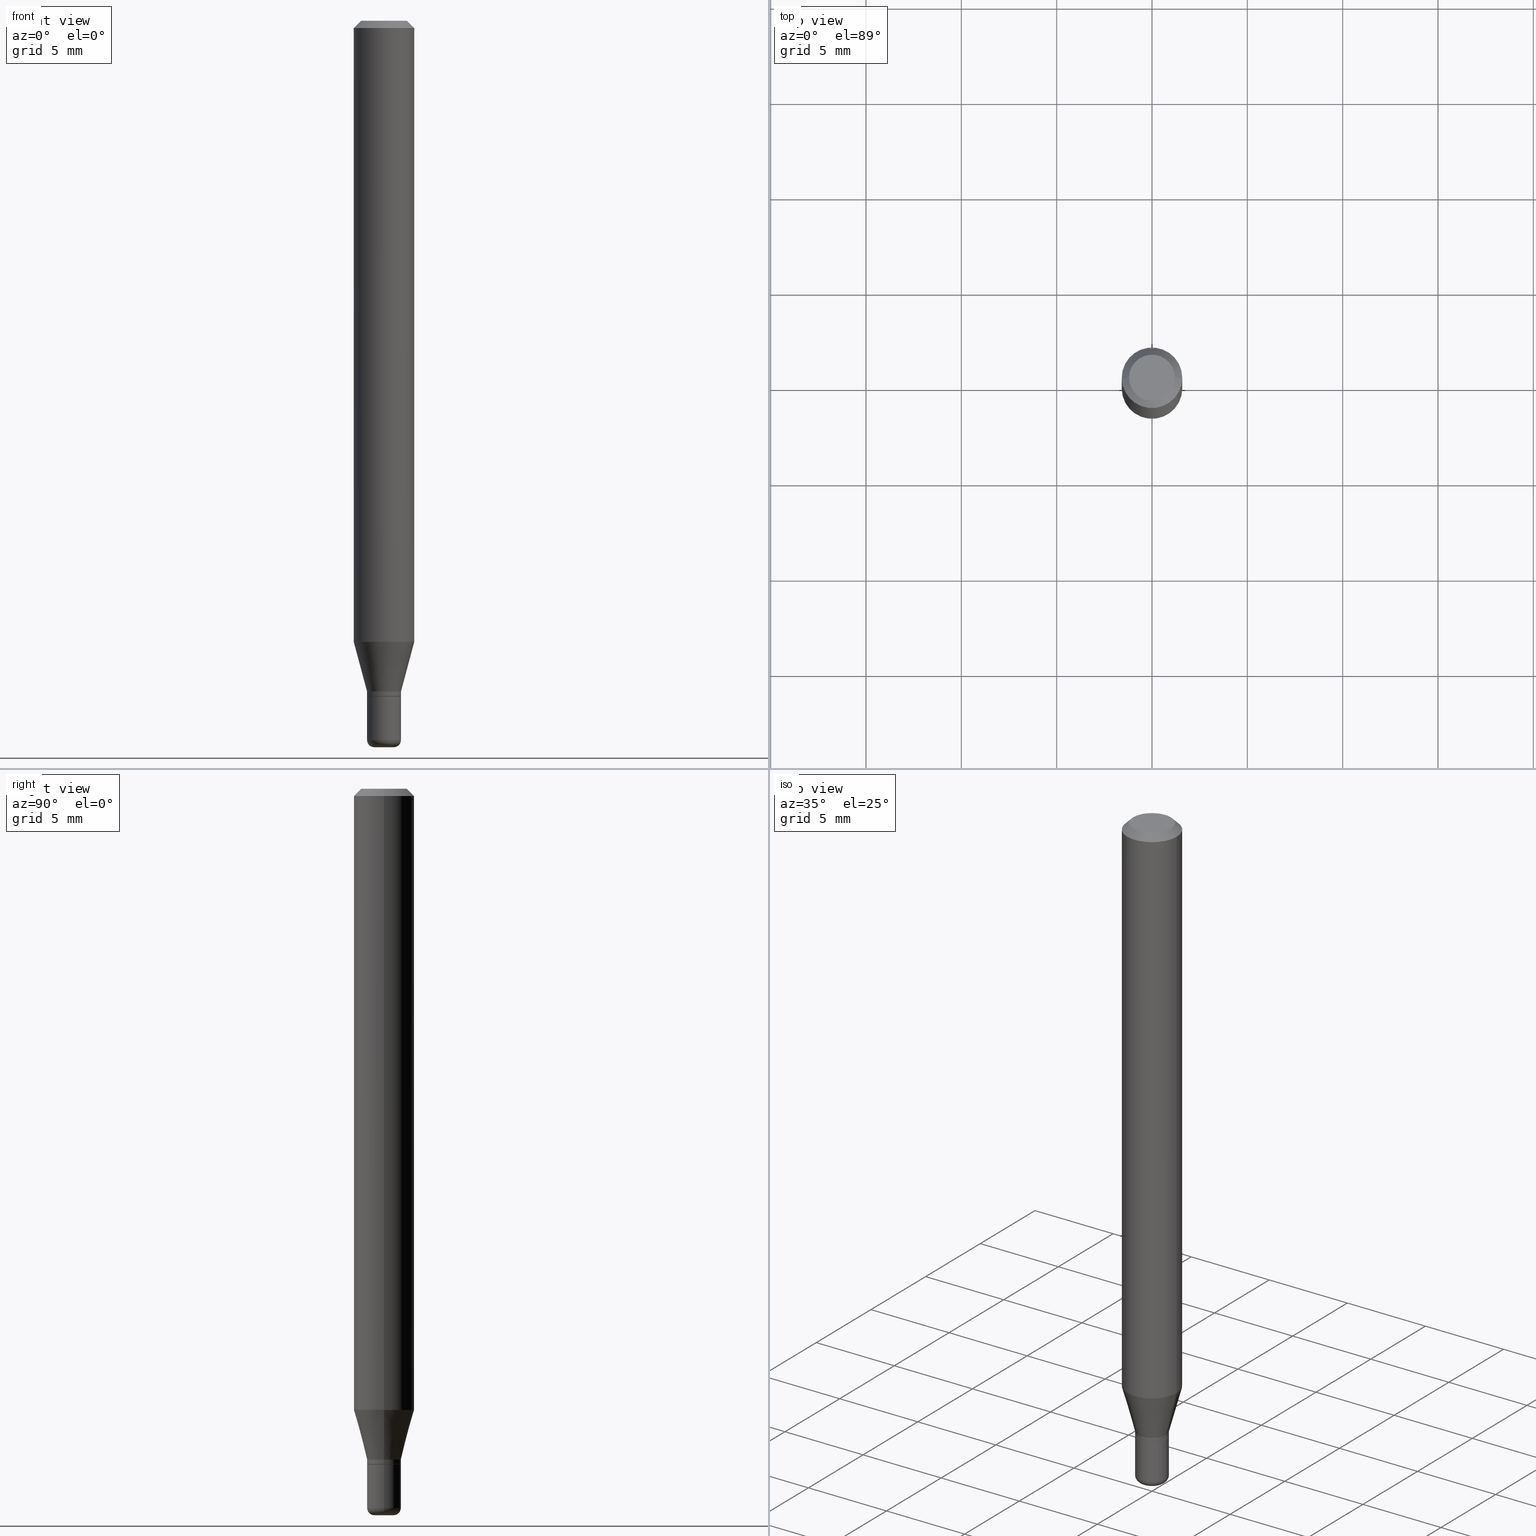
[diagram: canonical four-view strip — front | top / right | iso, engineering-drawing reading convention]
A machine part, canonical four-view strip (front | top / right | iso — engineering-drawing reading convention). The complete STEP part file that produces these views, byte-faithful:
ISO-10303-21;
HEADER;
FILE_DESCRIPTION (( 'STEP AP203' ),
    '1' );
FILE_NAME ('09034.STEP',
    '2024-02-29T21:28:18',
    ( '' ),
    ( '' ),
    'SwSTEP 2.0',
    'SolidWorks 2023',
    '' );
FILE_SCHEMA (( 'CONFIG_CONTROL_DESIGN' ));
ENDSEC;

DATA;
#1 = VECTOR ( 'NONE', #204, 39.37007874015748143 ) ;
#2 = DIRECTION ( 'NONE',  ( 0.2588190451025211281, 1.565188264969622954E-15, 0.9659258262890679791 ) ) ;
#3 = VECTOR ( 'NONE', #201, 39.37007874015748143 ) ;
#4 = AXIS2_PLACEMENT_3D ( 'NONE', #450, #444, #92 ) ;
#5 = EDGE_CURVE ( 'NONE', #503, #15, #28, .T. ) ;
#6 = CARTESIAN_POINT ( 'NONE',  ( 3.135992416158702162E-29, -4.477366046166123715E-15, -1.282368602791856160 ) ) ;
#7 = CARTESIAN_POINT ( 'NONE',  ( -0.03500000000000000333, -4.779043170418095363E-15, -1.395000000000000018 ) ) ;
#8 = DIRECTION ( 'NONE',  ( 2.438088387897960049E-29, -3.491481338843145188E-15, -1.000000000000000000 ) ) ;
#9 = DIRECTION ( 'NONE',  ( -2.438088387897960049E-29, 3.491481338843145188E-15, 1.000000000000000000 ) ) ;
#10 = DIRECTION ( 'NONE',  ( -2.445468806185136597E-29, 3.491481338843145583E-15, 1.000000000000000000 ) ) ;
#11 = EDGE_CURVE ( 'NONE', #503, #517, #226, .T. ) ;
#12 = APPROVAL_PERSON_ORGANIZATION ( #165, #75, #298 ) ;
#13 = PLANE ( 'NONE',  #105 ) ;
#14 = DESIGN_CONTEXT ( 'detailed design', #81, 'design' ) ;
#15 = VERTEX_POINT ( 'NONE', #266 ) ;
#16 = CARTESIAN_POINT ( 'NONE',  ( 0.000000000000000000, 0.000000000000000000, 0.000000000000000000 ) ) ;
#17 = DIRECTION ( 'NONE',  ( 1.000000000000000000, -6.982962677686265133E-15, 0.000000000000000000 ) ) ;
#18 = LINE ( 'NONE', #95, #291 ) ;
#19 = VECTOR ( 'NONE', #374, 39.37007874015748143 ) ;
#20 = CYLINDRICAL_SURFACE ( 'NONE', #146, 0.03499999999999999639 ) ;
#21 = CIRCLE ( 'NONE', #492, 0.03449999999999998901 ) ;
#22 = DIRECTION ( 'NONE',  ( 1.000000000000000000, -6.982962677686266711E-15, 4.852736867747365086E-29 ) ) ;
#23 = EDGE_CURVE ( 'NONE', #517, #503, #362, .T. ) ;
#24 = CARTESIAN_POINT ( 'NONE',  ( -0.02000000000000000389, -5.015636645889366715E-15, -1.500000000000000222 ) ) ;
#25 = ORIENTED_EDGE ( 'NONE', *, *, #143, .T. ) ;
#26 = ORIENTED_EDGE ( 'NONE', *, *, #429, .T. ) ;
#27 = ORIENTED_EDGE ( 'NONE', *, *, #210, .F. ) ;
#28 = LINE ( 'NONE', #351, #451 ) ;
#29 = ORIENTED_EDGE ( 'NONE', *, *, #192, .F. ) ;
#30 = ADVANCED_FACE ( 'NONE', ( #65 ), #13, .F. ) ;
#31 = ORIENTED_EDGE ( 'NONE', *, *, #471, .F. ) ;
#32 = CALENDAR_DATE ( 2024, 29, 2 ) ;
#33 = ORIENTED_EDGE ( 'NONE', *, *, #218, .F. ) ;
#34 = VECTOR ( 'NONE', #67, 39.37007874015748143 ) ;
#35 = VERTEX_POINT ( 'NONE', #117 ) ;
#36 = DIRECTION ( 'NONE',  ( 1.000000000000000000, -6.982962677686280121E-15, 0.000000000000000000 ) ) ;
#37 = ORIENTED_EDGE ( 'NONE', *, *, #274, .F. ) ;
#38 = CARTESIAN_POINT ( 'NONE',  ( 3.411428984628265351E-29, -4.870616467686188228E-15, -1.395000000000000018 ) ) ;
#39 = DIRECTION ( 'NONE',  ( 2.438088387897960049E-29, -3.491481338843145188E-15, -1.000000000000000000 ) ) ;
#40 = DIRECTION ( 'NONE',  ( 2.445468806185136597E-29, -3.491481338843145583E-15, -1.000000000000000000 ) ) ;
#41 = APPROVAL ( #242, 'UNSPECIFIED' ) ;
#42 = ORIENTED_EDGE ( 'NONE', *, *, #11, .F. ) ;
#43 = CLOSED_SHELL ( 'NONE', ( #398, #488, #119, #235, #480, #501 ) ) ;
#44 = LINE ( 'NONE', #364, #3 ) ;
#45 = DIRECTION ( 'NONE',  ( 1.000000000000000000, -6.982962677686265133E-15, 0.000000000000000000 ) ) ;
#46 = CARTESIAN_POINT ( 'NONE',  ( 3.316907271900976589E-16, 0.04750000000000000749, -2.925296391183627249E-17 ) ) ;
#47 = CARTESIAN_POINT ( 'NONE',  ( 3.631521177184928138E-29, -5.184849788182071492E-15, -1.485000000000000098 ) ) ;
#48 = FACE_OUTER_BOUND ( 'NONE', #231, .T. ) ;
#49 = EDGE_CURVE ( 'NONE', #268, #273, #407, .T. ) ;
#50 = CARTESIAN_POINT ( 'NONE',  ( 3.135992416158702162E-29, -4.477366046166123715E-15, -1.282368602791856160 ) ) ;
#51 = CARTESIAN_POINT ( 'NONE',  ( 3.668203209277632395E-31, -5.237222008264614861E-17, -0.01499999999999970281 ) ) ;
#52 = DIRECTION ( 'NONE',  ( -2.445468806185136597E-29, 3.491481338843145583E-15, 1.000000000000000000 ) ) ;
#53 = AXIS2_PLACEMENT_3D ( 'NONE', #292, #39, #485 ) ;
#54 = PERSON ( 'UNSPECIFIED', 'UNSPECIFIED', 'UNSPECIFIED', ('UNSPECIFIED'), ('UNSPECIFIED'), ('UNSPECIFIED') ) ;
#55 = CC_DESIGN_APPROVAL ( #41, ( #257 ) ) ;
#56 = FACE_OUTER_BOUND ( 'NONE', #437, .T. ) ;
#57 = EDGE_CURVE ( 'NONE', #183, #15, #133, .T. ) ;
#58 = PRODUCT ( '09034', '09034', '', ( #500 ) ) ;
#59 = APPROVAL_DATE_TIME ( #417, #62 ) ;
#60 = LOCAL_TIME ( 16, 28, 18.00000000000000000, #365 ) ;
#61 = PERSON_AND_ORGANIZATION_ROLE ( 'design_owner' ) ;
#62 = APPROVAL ( #490, 'UNSPECIFIED' ) ;
#63 = APPLICATION_PROTOCOL_DEFINITION ( 'international standard', 'config_control_design', 1994, #81 ) ;
#64 = CARTESIAN_POINT ( 'NONE',  ( -0.06250000000000000000, -4.033276836316061099E-15, -1.282368602791856160 ) ) ;
#65 = FACE_OUTER_BOUND ( 'NONE', #150, .T. ) ;
#66 =( NAMED_UNIT ( * ) SI_UNIT ( $, .STERADIAN. ) SOLID_ANGLE_UNIT ( ) );
#67 = DIRECTION ( 'NONE',  ( -0.7071067811866199593, 7.493145998870616062E-15, 0.7071067811864750752 ) ) ;
#68 = AXIS2_PLACEMENT_3D ( 'NONE', #16, #477, #280 ) ;
#69 = ORIENTED_EDGE ( 'NONE', *, *, #456, .F. ) ;
#70 = PERSON_AND_ORGANIZATION_ROLE ( 'design_supplier' ) ;
#71 = ADVANCED_FACE ( 'NONE', ( #446 ), #164, .T. ) ;
#72 = ORIENTED_EDGE ( 'NONE', *, *, #304, .T. ) ;
#73 = DIRECTION ( 'NONE',  ( -2.445468806185136597E-29, 3.491481338843145583E-15, 1.000000000000000000 ) ) ;
#74 = VERTEX_POINT ( 'NONE', #441 ) ;
#75 = APPROVAL ( #205, 'UNSPECIFIED' ) ;
#76 = EDGE_LOOP ( 'NONE', ( #151, #392, #468, #29 ) ) ;
#77 = ORIENTED_EDGE ( 'NONE', *, *, #5, .F. ) ;
#78 = AXIS2_PLACEMENT_3D ( 'NONE', #161, #401, #116 ) ;
#79 = ORIENTED_EDGE ( 'NONE', *, *, #130, .F. ) ;
#80 = CARTESIAN_POINT ( 'NONE',  ( 0.06250000000000000000, -4.888073874380378612E-16, -0.01499999999999970281 ) ) ;
#81 = APPLICATION_CONTEXT ( 'configuration controlled 3d designs of mechanical parts and assemblies' ) ;
#82 = CARTESIAN_POINT ( 'NONE',  ( 3.386974296566414366E-29, -4.835701654297756579E-15, -1.385000000000000009 ) ) ;
#83 = EDGE_CURVE ( 'NONE', #15, #35, #252, .T. ) ;
#84 = PERSON_AND_ORGANIZATION ( #54, #271 ) ;
#85 = CARTESIAN_POINT ( 'NONE',  ( -0.06250000000000000000, -1.820779923274322189E-15, -0.01499999999999970281 ) ) ;
#86 = FACE_OUTER_BOUND ( 'NONE', #350, .T. ) ;
#87 = DATE_AND_TIME ( #255, #60 ) ;
#88 = DIRECTION ( 'NONE',  ( 1.000000000000000000, -6.982962677686279332E-15, 4.883557194083117946E-29 ) ) ;
#89 = AXIS2_PLACEMENT_3D ( 'NONE', #510, #433, #318 ) ;
#90 = DIRECTION ( 'NONE',  ( -2.445468806185136597E-29, 3.491481338843145583E-15, 1.000000000000000000 ) ) ;
#91 = AXIS2_PLACEMENT_3D ( 'NONE', #282, #197, #403 ) ;
#92 = DIRECTION ( 'NONE',  ( 1.000000000000000000, -6.982962677686266711E-15, 0.000000000000000000 ) ) ;
#93 = ADVANCED_FACE ( 'NONE', ( #86 ), #306, .T. ) ;
#94 = CARTESIAN_POINT ( 'NONE',  ( -0.03500000000000000333, 2.486899575160350887E-16, -1.721627281589217108E-30 ) ) ;
#95 = CARTESIAN_POINT ( 'NONE',  ( 0.03499999999999999639, -2.444036937190192757E-16, 1.706661871528577457E-30 ) ) ;
#96 = DIRECTION ( 'NONE',  ( -2.445468806185136597E-29, 3.491481338843145583E-15, 1.000000000000000000 ) ) ;
#97 = DIRECTION ( 'NONE',  ( -2.445468806185136597E-29, 3.491481338843145583E-15, 1.000000000000000000 ) ) ;
#98 = EDGE_CURVE ( 'NONE', #35, #268, #457, .T. ) ;
#99 = AXIS2_PLACEMENT_3D ( 'NONE', #51, #208, #478 ) ;
#100 = EDGE_CURVE ( 'NONE', #108, #276, #369, .T. ) ;
#101 = CC_DESIGN_APPROVAL ( #62, ( #449 ) ) ;
#102 = ORIENTED_EDGE ( 'NONE', *, *, #83, .T. ) ;
#103 = CARTESIAN_POINT ( 'NONE',  ( 3.631521177184928138E-29, -5.184849788182071492E-15, -1.485000000000000098 ) ) ;
#104 = EDGE_LOOP ( 'NONE', ( #390, #26, #393, #391 ) ) ;
#105 = AXIS2_PLACEMENT_3D ( 'NONE', #46, #8, #247 ) ;
#106 = AXIS2_PLACEMENT_3D ( 'NONE', #402, #228, #198 ) ;
#107 = ORIENTED_EDGE ( 'NONE', *, *, #192, .T. ) ;
#108 = VERTEX_POINT ( 'NONE', #333 ) ;
#109 = ADVANCED_FACE ( 'NONE', ( #475 ), #121, .T. ) ;
#110 = EDGE_LOOP ( 'NONE', ( #31, #27 ) ) ;
#111 = ORIENTED_EDGE ( 'NONE', *, *, #160, .F. ) ;
#112 = ORIENTED_EDGE ( 'NONE', *, *, #83, .F. ) ;
#113 = PERSON_AND_ORGANIZATION ( #54, #271 ) ;
#114 = EDGE_CURVE ( 'NONE', #517, #183, #157, .T. ) ;
#115 = CIRCLE ( 'NONE', #371, 0.03449999999999998901 ) ;
#116 = DIRECTION ( 'NONE',  ( 1.000000000000000000, -6.982962677686265922E-15, 4.876176775795936353E-29 ) ) ;
#117 = CARTESIAN_POINT ( 'NONE',  ( 0.06250000000000000000, -4.913801213521515384E-15, -1.282368602791856160 ) ) ;
#118 = CARTESIAN_POINT ( 'NONE',  ( 3.668203209277704895E-29, -5.237222008264718177E-15, -1.500000000000000222 ) ) ;
#119 = ADVANCED_FACE ( 'NONE', ( #324 ), #326, .F. ) ;
#120 =( NAMED_UNIT ( * ) PLANE_ANGLE_UNIT ( ) SI_UNIT ( $, .RADIAN. ) );
#121 = CYLINDRICAL_SURFACE ( 'NONE', #78, 0.03500000000000000333 ) ;
#122 = CIRCLE ( 'NONE', #106, 0.02000000000000000389 ) ;
#123 = LOCAL_TIME ( 16, 28, 18.00000000000000000, #455 ) ;
#124 = DIRECTION ( 'NONE',  ( -2.445468806185136877E-29, 3.491481338843145188E-15, 1.000000000000000000 ) ) ;
#125 = PRODUCT_RELATED_PRODUCT_CATEGORY ( 'detail', '', ( #58 ) ) ;
#126 = UNCERTAINTY_MEASURE_WITH_UNIT (LENGTH_MEASURE( 1.000000000000000082E-05 ), #250, 'distance_accuracy_value', 'NONE');
#127 = DIRECTION ( 'NONE',  ( -2.445468806185136597E-29, 3.491481338843145583E-15, 1.000000000000000000 ) ) ;
#128 = DATE_AND_TIME ( #319, #459 ) ;
#129 = FACE_OUTER_BOUND ( 'NONE', #230, .T. ) ;
#130 = EDGE_CURVE ( 'NONE', #273, #276, #498, .T. ) ;
#131 = DIRECTION ( 'NONE',  ( -2.445468806185136597E-29, 3.491481338843145583E-15, 1.000000000000000000 ) ) ;
#132 = CC_DESIGN_PERSON_AND_ORGANIZATION_ASSIGNMENT ( #470, #70, ( #257 ) ) ;
#133 = CIRCLE ( 'NONE', #424, 0.03500000000000001027 ) ;
#134 = VECTOR ( 'NONE', #124, 39.37007874015748143 ) ;
#135 = DIRECTION ( 'NONE',  ( -2.445468806185136597E-29, 3.491481338843145583E-15, 1.000000000000000000 ) ) ;
#136 = ADVANCED_FACE ( 'NONE', ( #372 ), #169, .F. ) ;
#137 = DIRECTION ( 'NONE',  ( 0.000000000000000000, 0.000000000000000000, 1.000000000000000000 ) ) ;
#138 = LINE ( 'NONE', #182, #34 ) ;
#139 = ADVANCED_BREP_SHAPE_REPRESENTATION ( '09034', ( #212, #381, #158 ), #354 ) ;
#140 = ORIENTED_EDGE ( 'NONE', *, *, #114, .F. ) ;
#141 = EDGE_LOOP ( 'NONE', ( #184, #190 ) ) ;
#142 = ORIENTED_EDGE ( 'NONE', *, *, #160, .T. ) ;
#143 = EDGE_CURVE ( 'NONE', #74, #503, #44, .T. ) ;
#144 = ORIENTED_EDGE ( 'NONE', *, *, #388, .T. ) ;
#145 = PERSON_AND_ORGANIZATION_ROLE ( 'classification_officer' ) ;
#146 = AXIS2_PLACEMENT_3D ( 'NONE', #207, #213, #176 ) ;
#147 = ORIENTED_EDGE ( 'NONE', *, *, #49, .T. ) ;
#148 = APPROVAL_PERSON_ORGANIZATION ( #222, #62, #217 ) ;
#149 = ORIENTED_EDGE ( 'NONE', *, *, #185, .F. ) ;
#150 = EDGE_LOOP ( 'NONE', ( #239, #187 ) ) ;
#151 = ORIENTED_EDGE ( 'NONE', *, *, #295, .F. ) ;
#152 = DIRECTION ( 'NONE',  ( 2.445468806185136597E-29, -3.491481338843145583E-15, -1.000000000000000000 ) ) ;
#153 = CC_DESIGN_PERSON_AND_ORGANIZATION_ASSIGNMENT ( #305, #61, ( #58 ) ) ;
#154 = ORIENTED_EDGE ( 'NONE', *, *, #304, .F. ) ;
#155 = CARTESIAN_POINT ( 'NONE',  ( 3.668203209277632395E-31, -5.237222008264614861E-17, -0.01499999999999970281 ) ) ;
#156 = VECTOR ( 'NONE', #249, 39.37007874015748143 ) ;
#157 = LINE ( 'NONE', #94, #156 ) ;
#158 = AXIS2_PLACEMENT_3D ( 'NONE', #264, #137, #378 ) ;
#159 = DIRECTION ( 'NONE',  ( -1.000000000000000000, 6.982962677686266711E-15, 0.000000000000000000 ) ) ;
#160 = EDGE_CURVE ( 'NONE', #268, #35, #209, .T. ) ;
#161 = CARTESIAN_POINT ( 'NONE',  ( 0.000000000000000000, 0.000000000000000000, 0.000000000000000000 ) ) ;
#162 = DIRECTION ( 'NONE',  ( -2.445468806185136597E-29, 3.491481338843145583E-15, 1.000000000000000000 ) ) ;
#163 = CARTESIAN_POINT ( 'NONE',  ( 0.03499999999999999639, -5.113274420735786690E-15, -1.394500000000000073 ) ) ;
#164 = CYLINDRICAL_SURFACE ( 'NONE', #261, 0.03500000000000000333 ) ;
#165 = PERSON_AND_ORGANIZATION ( #54, #271 ) ;
#166 = CONICAL_SURFACE ( 'NONE', #175, 0.03449999999999998901, 0.7853981633975507526 ) ;
#167 = AXIS2_PLACEMENT_3D ( 'NONE', #448, #9, #487 ) ;
#168 = DIRECTION ( 'NONE',  ( 1.000000000000000000, -6.982962677686279332E-15, 4.883557194083117946E-29 ) ) ;
#169 = PLANE ( 'NONE',  #91 ) ;
#170 = EDGE_CURVE ( 'NONE', #278, #225, #466, .T. ) ;
#171 = CC_DESIGN_PERSON_AND_ORGANIZATION_ASSIGNMENT ( #507, #145, ( #512 ) ) ;
#172 = CARTESIAN_POINT ( 'NONE',  ( 0.02000000000000000389, -5.376881261818443984E-15, -1.500000000000000222 ) ) ;
#173 = DIRECTION ( 'NONE',  ( -2.445468806185136597E-29, 3.491481338843145583E-15, 1.000000000000000000 ) ) ;
#174 = AXIS2_PLACEMENT_3D ( 'NONE', #347, #73, #232 ) ;
#175 = AXIS2_PLACEMENT_3D ( 'NONE', #289, #52, #258 ) ;
#176 = DIRECTION ( 'NONE',  ( 1.000000000000000000, -6.982962677686265922E-15, 4.876176775795936353E-29 ) ) ;
#177 = ADVANCED_FACE ( 'NONE', ( #421 ), #178, .T. ) ;
#178 = CYLINDRICAL_SURFACE ( 'NONE', #458, 0.06250000000000000000 ) ;
#179 = CARTESIAN_POINT ( 'NONE',  ( -6.680649051745406845E-45, 9.538196290434862081E-31, 2.731847993664263218E-16 ) ) ;
#180 = APPLICATION_PROTOCOL_DEFINITION ( 'international standard', 'config_control_design', 1994, #389 ) ;
#181 = CIRCLE ( 'NONE', #4, 0.06250000000000000000 ) ;
#182 = CARTESIAN_POINT ( 'NONE',  ( -0.03449999999999998901, -4.625479223848953840E-15, -1.395000000000000018 ) ) ;
#183 = VERTEX_POINT ( 'NONE', #380 ) ;
#184 = ORIENTED_EDGE ( 'NONE', *, *, #494, .T. ) ;
#185 = EDGE_CURVE ( 'NONE', #35, #276, #254, .T. ) ;
#186 = ORIENTED_EDGE ( 'NONE', *, *, #98, .T. ) ;
#187 = ORIENTED_EDGE ( 'NONE', *, *, #295, .T. ) ;
#188 = EDGE_LOOP ( 'NONE', ( #436, #277, #432, #77 ) ) ;
#189 = AXIS2_PLACEMENT_3D ( 'NONE', #422, #325, #263 ) ;
#190 = ORIENTED_EDGE ( 'NONE', *, *, #314, .T. ) ;
#191 = EDGE_LOOP ( 'NONE', ( #514, #465, #312, #467 ) ) ;
#192 = EDGE_CURVE ( 'NONE', #473, #273, #214, .T. ) ;
#193 = PERSON_AND_ORGANIZATION_ROLE ( 'creator' ) ;
#194 = DIRECTION ( 'NONE',  ( 1.000000000000000000, -6.982962677686266711E-15, 4.852736867747365086E-29 ) ) ;
#195 = ORIENTED_EDGE ( 'NONE', *, *, #366, .F. ) ;
#196 = CARTESIAN_POINT ( 'NONE',  ( 0.02000000000000000042, -5.324509041735797299E-15, -1.485000000000000098 ) ) ;
#197 = DIRECTION ( 'NONE',  ( -2.438088387897960049E-29, 3.491481338843145188E-15, 1.000000000000000000 ) ) ;
#198 = DIRECTION ( 'NONE',  ( 1.000000000000000000, -6.982962677686282488E-15, 0.000000000000000000 ) ) ;
#199 = AXIS2_PLACEMENT_3D ( 'NONE', #361, #40, #159 ) ;
#200 = CONICAL_SURFACE ( 'NONE', #413, 0.03500000000000001027, 0.2617993877991498519 ) ;
#201 = DIRECTION ( 'NONE',  ( 0.7071067811866199593, -2.468850131083015945E-15, 0.7071067811864750752 ) ) ;
#202 = CYLINDRICAL_SURFACE ( 'NONE', #385, 0.03499999999999999639 ) ;
#203 = PLANE ( 'NONE',  #167 ) ;
#204 = DIRECTION ( 'NONE',  ( -2.445468806185136877E-29, 3.491481338843145188E-15, 1.000000000000000000 ) ) ;
#205 = APPROVAL_STATUS ( 'not_yet_approved' ) ;
#206 = CARTESIAN_POINT ( 'NONE',  ( -0.02000000000000000042, -5.042741241030051329E-15, -1.485000000000000098 ) ) ;
#207 = CARTESIAN_POINT ( 'NONE',  ( 0.000000000000000000, 0.000000000000000000, 0.000000000000000000 ) ) ;
#208 = DIRECTION ( 'NONE',  ( -2.445468806185136597E-29, 3.491481338843145583E-15, 1.000000000000000000 ) ) ;
#209 = CIRCLE ( 'NONE', #237, 0.06250000000000000000 ) ;
#210 = EDGE_CURVE ( 'NONE', #435, #74, #115, .T. ) ;
#211 =( LENGTH_UNIT ( ) NAMED_UNIT ( * ) SI_UNIT ( $, .METRE. ) );
#212 = MANIFOLD_SOLID_BREP ( 'Body-Move/Copy2[1]', #43 ) ;
#213 = DIRECTION ( 'NONE',  ( -2.445468806185136597E-29, 3.491481338843145583E-15, 1.000000000000000000 ) ) ;
#214 = LINE ( 'NONE', #339, #19 ) ;
#215 = CARTESIAN_POINT ( 'NONE',  ( -0.03449999999999998901, -4.622829996674842639E-15, -1.395000000000000018 ) ) ;
#216 = CARTESIAN_POINT ( 'NONE',  ( 3.411428984628265351E-29, -4.870616467686188228E-15, -1.395000000000000018 ) ) ;
#217 = APPROVAL_ROLE ( '' ) ;
#218 = EDGE_CURVE ( 'NONE', #473, #108, #290, .T. ) ;
#219 = AXIS2_PLACEMENT_3D ( 'NONE', #243, #127, #241 ) ;
#220 = LOCAL_TIME ( 16, 28, 18.00000000000000000, #283 ) ;
#221 = CARTESIAN_POINT ( 'NONE',  ( -0.03500000000000001027, -4.587011696781721293E-15, -1.385000000000000009 ) ) ;
#222 = PERSON_AND_ORGANIZATION ( #54, #271 ) ;
#223 = ORIENTED_EDGE ( 'NONE', *, *, #210, .T. ) ;
#224 = DIRECTION ( 'NONE',  ( -0.2588190451025211281, 5.211531920934547886E-15, 0.9659258262890679791 ) ) ;
#225 = VERTEX_POINT ( 'NONE', #172 ) ;
#226 = CIRCLE ( 'NONE', #174, 0.03499999999999999639 ) ;
#227 = EDGE_CURVE ( 'NONE', #355, #463, #376, .T. ) ;
#228 = DIRECTION ( 'NONE',  ( -2.445468806185136597E-29, 3.491481338843145583E-15, 1.000000000000000000 ) ) ;
#229 = ORIENTED_EDGE ( 'NONE', *, *, #98, .F. ) ;
#230 = EDGE_LOOP ( 'NONE', ( #397, #461, #144, #154 ) ) ;
#231 = EDGE_LOOP ( 'NONE', ( #69, #72, #387, #321 ) ) ;
#232 = DIRECTION ( 'NONE',  ( 1.000000000000000000, -6.982962677686278543E-15, 0.000000000000000000 ) ) ;
#233 = PERSON_AND_ORGANIZATION_ROLE ( 'creator' ) ;
#234 = ORIENTED_EDGE ( 'NONE', *, *, #259, .T. ) ;
#235 = ADVANCED_FACE ( 'NONE', ( #48 ), #20, .T. ) ;
#236 = ORIENTED_EDGE ( 'NONE', *, *, #23, .T. ) ;
#237 = AXIS2_PLACEMENT_3D ( 'NONE', #6, #90, #479 ) ;
#238 = ORIENTED_EDGE ( 'NONE', *, *, #329, .F. ) ;
#239 = ORIENTED_EDGE ( 'NONE', *, *, #218, .T. ) ;
#240 = LINE ( 'NONE', #221, #484 ) ;
#241 = DIRECTION ( 'NONE',  ( 1.000000000000000000, -6.982962677686275388E-15, 0.000000000000000000 ) ) ;
#242 = APPROVAL_STATUS ( 'not_yet_approved' ) ;
#243 = CARTESIAN_POINT ( 'NONE',  ( 3.386974296566414366E-29, -4.835701654297756579E-15, -1.385000000000000009 ) ) ;
#244 = DIRECTION ( 'NONE',  ( -1.000000000000000000, 7.105427357600996337E-15, 0.000000000000000000 ) ) ;
#245 = ADVANCED_FACE ( 'NONE', ( #373 ), #335, .T. ) ;
#246 = VECTOR ( 'NONE', #454, 39.37007874015748143 ) ;
#247 = DIRECTION ( 'NONE',  ( -1.000000000000000000, 6.982962677686265922E-15, -4.876176775795935793E-29 ) ) ;
#248 = CARTESIAN_POINT ( 'NONE',  ( 3.386974296566414366E-29, -4.835701654297756579E-15, -1.385000000000000009 ) ) ;
#249 = DIRECTION ( 'NONE',  ( -2.445468806185136877E-29, 3.491481338843145188E-15, 1.000000000000000000 ) ) ;
#250 =( CONVERSION_BASED_UNIT ( 'INCH', #327 ) LENGTH_UNIT ( ) NAMED_UNIT ( #359 ) );
#251 = ADVANCED_FACE ( 'NONE', ( #516 ), #363, .T. ) ;
#252 = LINE ( 'NONE', #285, #419 ) ;
#253 = CARTESIAN_POINT ( 'NONE',  ( -0.03499999999999999639, 2.486899575160350394E-16, -1.721627281589216757E-30 ) ) ;
#254 = LINE ( 'NONE', #414, #246 ) ;
#255 = CALENDAR_DATE ( 2024, 29, 2 ) ;
#256 = CIRCLE ( 'NONE', #302, 0.01499999999999998904 ) ;
#257 = PRODUCT_DEFINITION_FORMATION_WITH_SPECIFIED_SOURCE ( 'ANY', '', #58, .NOT_KNOWN. ) ;
#258 = DIRECTION ( 'NONE',  ( 1.000000000000000000, -6.982962677686265133E-15, 0.000000000000000000 ) ) ;
#259 = EDGE_CURVE ( 'NONE', #15, #183, #270, .T. ) ;
#260 = CALENDAR_DATE ( 2024, 29, 2 ) ;
#261 = AXIS2_PLACEMENT_3D ( 'NONE', #482, #162, #410 ) ;
#262 = CONICAL_SURFACE ( 'NONE', #412, 0.03449999999999998901, 0.7853981633975507526 ) ;
#263 = DIRECTION ( 'NONE',  ( 1.000000000000000000, -6.982962677686276966E-15, 0.000000000000000000 ) ) ;
#264 = CARTESIAN_POINT ( 'NONE',  ( 0.000000000000000000, 0.000000000000000000, 0.000000000000000000 ) ) ;
#265 = CARTESIAN_POINT ( 'NONE',  ( 3.386974296566414366E-29, -4.835701654297756579E-15, -1.385000000000000009 ) ) ;
#266 = CARTESIAN_POINT ( 'NONE',  ( 0.03500000000000001027, -5.080105348016776545E-15, -1.385000000000000009 ) ) ;
#267 = EDGE_LOOP ( 'NONE', ( #275, #356, #42, #346 ) ) ;
#268 = VERTEX_POINT ( 'NONE', #64 ) ;
#269 = APPROVAL_ROLE ( '' ) ;
#270 = CIRCLE ( 'NONE', #281, 0.03500000000000001027 ) ;
#271 = ORGANIZATION ( 'UNSPECIFIED', 'UNSPECIFIED', '' ) ;
#272 = ORIENTED_EDGE ( 'NONE', *, *, #57, .T. ) ;
#273 = VERTEX_POINT ( 'NONE', #85 ) ;
#274 = EDGE_CURVE ( 'NONE', #225, #278, #122, .T. ) ;
#275 = ORIENTED_EDGE ( 'NONE', *, *, #471, .T. ) ;
#276 = VERTEX_POINT ( 'NONE', #80 ) ;
#277 = ORIENTED_EDGE ( 'NONE', *, *, #114, .T. ) ;
#278 = VERTEX_POINT ( 'NONE', #24 ) ;
#279 = APPROVAL_DATE_TIME ( #515, #41 ) ;
#280 = DIRECTION ( 'NONE',  ( 1.000000000000000000, -6.982962677686266711E-15, 4.876176775795935793E-29 ) ) ;
#281 = AXIS2_PLACEMENT_3D ( 'NONE', #265, #284, #439 ) ;
#282 = CARTESIAN_POINT ( 'NONE',  ( 3.411428984628265351E-29, -4.870616467686188228E-15, -1.395000000000000018 ) ) ;
#283 = COORDINATED_UNIVERSAL_TIME_OFFSET ( 5, 0, .BEHIND. ) ;
#284 = DIRECTION ( 'NONE',  ( -2.445468806185136597E-29, 3.491481338843145583E-15, 1.000000000000000000 ) ) ;
#285 = CARTESIAN_POINT ( 'NONE',  ( 0.03500000000000001027, -5.080105348016776545E-15, -1.385000000000000009 ) ) ;
#286 = CC_DESIGN_PERSON_AND_ORGANIZATION_ASSIGNMENT ( #352, #193, ( #257 ) ) ;
#287 = DIRECTION ( 'NONE',  ( -2.445468806185136597E-29, 3.491481338843145583E-15, 1.000000000000000000 ) ) ;
#288 = DIRECTION ( 'NONE',  ( -2.445468806185136597E-29, 3.491481338843145583E-15, 1.000000000000000000 ) ) ;
#289 = CARTESIAN_POINT ( 'NONE',  ( 3.411428984628265351E-29, -4.870616467686188228E-15, -1.395000000000000018 ) ) ;
#290 = CIRCLE ( 'NONE', #316, 0.04750000000000000749 ) ;
#291 = VECTOR ( 'NONE', #334, 39.37007874015748143 ) ;
#292 = CARTESIAN_POINT ( 'NONE',  ( 2.444036937190534432E-16, 0.03499999999999513223, -1.395000000000000018 ) ) ;
#293 = APPROVAL_DATE_TIME ( #87, #75 ) ;
#294 = CARTESIAN_POINT ( 'NONE',  ( -0.03499999999999998945, -4.779043170418095363E-15, -1.485000000000000098 ) ) ;
#295 = EDGE_CURVE ( 'NONE', #108, #473, #476, .T. ) ;
#296 = CARTESIAN_POINT ( 'NONE',  ( 0.06250000000000000000, -4.811533449433669144E-16, -0.01499999999999970281 ) ) ;
#297 = DIRECTION ( 'NONE',  ( -2.445468806185136597E-29, 3.491481338843145583E-15, 1.000000000000000000 ) ) ;
#298 = APPROVAL_ROLE ( '' ) ;
#299 = CARTESIAN_POINT ( 'NONE',  ( 3.411428984628265351E-29, -4.870616467686188228E-15, -1.395000000000000018 ) ) ;
#300 = CLOSED_SHELL ( 'NONE', ( #109, #342, #308, #177, #93, #462, #245, #251, #30, #136, #406, #71 ) ) ;
#301 = AXIS2_PLACEMENT_3D ( 'NONE', #303, #131, #416 ) ;
#302 = AXIS2_PLACEMENT_3D ( 'NONE', #206, #330, #244 ) ;
#303 = CARTESIAN_POINT ( 'NONE',  ( 3.631521177184928138E-29, -5.184849788182071492E-15, -1.485000000000000098 ) ) ;
#304 = EDGE_CURVE ( 'NONE', #463, #355, #338, .T. ) ;
#305 = PERSON_AND_ORGANIZATION ( #54, #271 ) ;
#306 = CONICAL_SURFACE ( 'NONE', #219, 0.03500000000000001027, 0.2617993877991498519 ) ;
#307 = CC_DESIGN_APPROVAL ( #75, ( #512 ) ) ;
#308 = ADVANCED_FACE ( 'NONE', ( #460 ), #491, .T. ) ;
#309 = DIRECTION ( 'NONE',  ( -2.445468806185136597E-29, 3.491481338843145583E-15, 1.000000000000000000 ) ) ;
#310 = FACE_OUTER_BOUND ( 'NONE', #317, .T. ) ;
#311 = EDGE_LOOP ( 'NONE', ( #140, #236, #322, #423 ) ) ;
#312 = ORIENTED_EDGE ( 'NONE', *, *, #494, .F. ) ;
#313 = ORIENTED_EDGE ( 'NONE', *, *, #23, .F. ) ;
#314 = EDGE_CURVE ( 'NONE', #506, #348, #438, .T. ) ;
#315 = COORDINATED_UNIVERSAL_TIME_OFFSET ( 5, 0, .BEHIND. ) ;
#316 = AXIS2_PLACEMENT_3D ( 'NONE', #493, #135, #22 ) ;
#317 = EDGE_LOOP ( 'NONE', ( #195, #223, #25, #313 ) ) ;
#318 = DIRECTION ( 'NONE',  ( 1.000000000000000000, -6.982962677686278543E-15, 0.000000000000000000 ) ) ;
#319 = CALENDAR_DATE ( 2024, 29, 2 ) ;
#320 = CC_DESIGN_DATE_AND_TIME_ASSIGNMENT ( #128, #442, ( #512 ) ) ;
#321 = ORIENTED_EDGE ( 'NONE', *, *, #314, .F. ) ;
#322 = ORIENTED_EDGE ( 'NONE', *, *, #5, .T. ) ;
#323 = DIRECTION ( 'NONE',  ( -2.445468806185136877E-29, 3.491481338843145188E-15, 1.000000000000000000 ) ) ;
#324 = FACE_OUTER_BOUND ( 'NONE', #141, .T. ) ;
#325 = DIRECTION ( 'NONE',  ( -2.445468806185136597E-29, 3.491481338843145583E-15, 1.000000000000000000 ) ) ;
#326 = PLANE ( 'NONE',  #53 ) ;
#327 = LENGTH_MEASURE_WITH_UNIT ( LENGTH_MEASURE( 0.02539999999999999897 ), #211 );
#328 = DIRECTION ( 'NONE',  ( 1.000000000000000000, -6.982962677686275388E-15, 0.000000000000000000 ) ) ;
#329 = EDGE_CURVE ( 'NONE', #183, #268, #240, .T. ) ;
#330 = DIRECTION ( 'NONE',  ( 7.105427357601001859E-15, 1.000000000000000000, -3.491481338843145583E-15 ) ) ;
#331 = CIRCLE ( 'NONE', #452, 0.01499999999999998904 ) ;
#332 = CIRCLE ( 'NONE', #499, 0.03500000000000000333 ) ;
#333 = CARTESIAN_POINT ( 'NONE',  ( 0.04750000000000000749, -4.035134999187568762E-16, 2.731847993664288856E-16 ) ) ;
#334 = DIRECTION ( 'NONE',  ( -2.445468806185136877E-29, 3.491481338843145188E-15, 1.000000000000000000 ) ) ;
#335 = CYLINDRICAL_SURFACE ( 'NONE', #68, 0.06250000000000000000 ) ;
#336 = DIRECTION ( 'NONE',  ( 1.000000000000000000, -6.982962677686276966E-15, 0.000000000000000000 ) ) ;
#337 = CARTESIAN_POINT ( 'NONE',  ( -0.03499999999999999639, -4.620180769500732227E-15, -1.394500000000000073 ) ) ;
#338 = CIRCLE ( 'NONE', #509, 0.03499999999999998945 ) ;
#339 = CARTESIAN_POINT ( 'NONE',  ( -0.06250000000000000000, 3.840629472727455270E-16, -0.01499999999999970281 ) ) ;
#340 = DIRECTION ( 'NONE',  ( 1.000000000000000000, -6.982962677686266711E-15, 4.876176775795935793E-29 ) ) ;
#341 = CARTESIAN_POINT ( 'NONE',  ( 0.000000000000000000, 0.000000000000000000, 0.000000000000000000 ) ) ;
#342 = ADVANCED_FACE ( 'NONE', ( #379 ), #262, .T. ) ;
#343 = DIRECTION ( 'NONE',  ( -2.445468806185136597E-29, 3.491481338843145583E-15, 1.000000000000000000 ) ) ;
#344 = VECTOR ( 'NONE', #360, 39.37007874015748143 ) ;
#345 = DIRECTION ( 'NONE',  ( 1.000000000000000000, -6.982962677686273021E-15, 0.000000000000000000 ) ) ;
#346 = ORIENTED_EDGE ( 'NONE', *, *, #143, .F. ) ;
#347 = CARTESIAN_POINT ( 'NONE',  ( 3.410206250225173110E-29, -4.868870727016767513E-15, -1.394500000000000073 ) ) ;
#348 = VERTEX_POINT ( 'NONE', #497 ) ;
#349 = SECURITY_CLASSIFICATION_LEVEL ( 'unclassified' ) ;
#350 = EDGE_LOOP ( 'NONE', ( #234, #386, #229, #112 ) ) ;
#351 = CARTESIAN_POINT ( 'NONE',  ( 0.03500000000000000333, -2.444036937190193250E-16, 1.706661871528577808E-30 ) ) ;
#352 = PERSON_AND_ORGANIZATION ( #54, #271 ) ;
#353 = AXIS2_PLACEMENT_3D ( 'NONE', #155, #152, #382 ) ;
#354 =( GEOMETRIC_REPRESENTATION_CONTEXT ( 3 ) GLOBAL_UNCERTAINTY_ASSIGNED_CONTEXT ( ( #126 ) ) GLOBAL_UNIT_ASSIGNED_CONTEXT ( ( #250, #120, #66 ) ) REPRESENTATION_CONTEXT ( 'NONE', 'WORKASPACE' ) );
#355 = VERTEX_POINT ( 'NONE', #400 ) ;
#356 = ORIENTED_EDGE ( 'NONE', *, *, #366, .T. ) ;
#357 = DIRECTION ( 'NONE',  ( 1.000000000000000000, -6.982962677686265133E-15, 0.000000000000000000 ) ) ;
#358 = CC_DESIGN_PERSON_AND_ORGANIZATION_ASSIGNMENT ( #113, #233, ( #449 ) ) ;
#359 = DIMENSIONAL_EXPONENTS ( 1.000000000000000000, 0.000000000000000000, 0.000000000000000000, 0.000000000000000000, 0.000000000000000000, 0.000000000000000000, 0.000000000000000000 ) ;
#360 = DIRECTION ( 'NONE',  ( 0.7071067811865479058, -7.319954787623257623E-15, -0.7071067811865471286 ) ) ;
#361 = CARTESIAN_POINT ( 'NONE',  ( 3.668203209277632395E-31, -5.237222008264614861E-17, -0.01499999999999970281 ) ) ;
#362 = CIRCLE ( 'NONE', #89, 0.03499999999999999639 ) ;
#363 = CONICAL_SURFACE ( 'NONE', #353, 0.06250000000000000000, 0.7853981633974488341 ) ;
#364 = CARTESIAN_POINT ( 'NONE',  ( 0.03449999999999998901, -5.111528680066364398E-15, -1.395000000000000018 ) ) ;
#365 = COORDINATED_UNIVERSAL_TIME_OFFSET ( 5, 0, .BEHIND. ) ;
#366 = EDGE_CURVE ( 'NONE', #435, #517, #138, .T. ) ;
#367 = CARTESIAN_POINT ( 'NONE',  ( -0.06250000000000000000, 4.440892098500626162E-16, -3.074334431409316114E-30 ) ) ;
#368 = CARTESIAN_POINT ( 'NONE',  ( 0.000000000000000000, 0.000000000000000000, 0.000000000000000000 ) ) ;
#369 = LINE ( 'NONE', #296, #344 ) ;
#370 = LINE ( 'NONE', #253, #134 ) ;
#371 = AXIS2_PLACEMENT_3D ( 'NONE', #216, #496, #17 ) ;
#372 = FACE_OUTER_BOUND ( 'NONE', #110, .T. ) ;
#373 = FACE_OUTER_BOUND ( 'NONE', #508, .T. ) ;
#374 = DIRECTION ( 'NONE',  ( -0.7071067811865479058, 2.468850131082261005E-15, -0.7071067811865471286 ) ) ;
#375 = FACE_OUTER_BOUND ( 'NONE', #472, .T. ) ;
#376 = CIRCLE ( 'NONE', #301, 0.03499999999999998945 ) ;
#377 = CC_DESIGN_SECURITY_CLASSIFICATION ( #512, ( #257 ) ) ;
#378 = DIRECTION ( 'NONE',  ( 1.000000000000000000, 0.000000000000000000, 0.000000000000000000 ) ) ;
#379 = FACE_OUTER_BOUND ( 'NONE', #267, .T. ) ;
#380 = CARTESIAN_POINT ( 'NONE',  ( -0.03500000000000001027, -4.310144266548890801E-15, -1.385000000000000009 ) ) ;
#381 = MANIFOLD_SOLID_BREP ( 'Body-Move/Copy2[2]', #300 ) ;
#382 = DIRECTION ( 'NONE',  ( -1.000000000000000000, 6.982962677686266711E-15, 0.000000000000000000 ) ) ;
#383 = ORIENTED_EDGE ( 'NONE', *, *, #49, .F. ) ;
#384 = AXIS2_PLACEMENT_3D ( 'NONE', #50, #96, #440 ) ;
#385 = AXIS2_PLACEMENT_3D ( 'NONE', #368, #447, #411 ) ;
#386 = ORIENTED_EDGE ( 'NONE', *, *, #329, .T. ) ;
#387 = ORIENTED_EDGE ( 'NONE', *, *, #511, .T. ) ;
#388 = EDGE_CURVE ( 'NONE', #225, #355, #331, .T. ) ;
#389 = APPLICATION_CONTEXT ( 'configuration controlled 3d designs of mechanical parts and assemblies' ) ;
#390 = ORIENTED_EDGE ( 'NONE', *, *, #274, .T. ) ;
#391 = ORIENTED_EDGE ( 'NONE', *, *, #388, .F. ) ;
#392 = ORIENTED_EDGE ( 'NONE', *, *, #100, .T. ) ;
#393 = ORIENTED_EDGE ( 'NONE', *, *, #227, .F. ) ;
#394 = AXIS2_PLACEMENT_3D ( 'NONE', #103, #97, #88 ) ;
#395 = CARTESIAN_POINT ( 'NONE',  ( 3.631521177184928138E-29, -5.184849788182071492E-15, -1.485000000000000098 ) ) ;
#396 = AXIS2_PLACEMENT_3D ( 'NONE', #47, #173, #168 ) ;
#397 = ORIENTED_EDGE ( 'NONE', *, *, #429, .F. ) ;
#398 = ADVANCED_FACE ( 'NONE', ( #502 ), #405, .T. ) ;
#399 = DATE_AND_TIME ( #32, #220 ) ;
#400 = CARTESIAN_POINT ( 'NONE',  ( 0.03499999999999998945, -5.429253481901091458E-15, -1.485000000000000098 ) ) ;
#401 = DIRECTION ( 'NONE',  ( -2.445468806185136597E-29, 3.491481338843145583E-15, 1.000000000000000000 ) ) ;
#402 = CARTESIAN_POINT ( 'NONE',  ( 3.668203209277704895E-29, -5.237222008264718177E-15, -1.500000000000000222 ) ) ;
#403 = DIRECTION ( 'NONE',  ( 1.000000000000000000, -6.982962677686265922E-15, 4.876176775795935793E-29 ) ) ;
#404 = DIRECTION ( 'NONE',  ( -2.445468806185136597E-29, 3.491481338843145583E-15, 1.000000000000000000 ) ) ;
#405 = TOROIDAL_SURFACE ( 'NONE', #394, 0.02000000000000000042, 0.01499999999999998904 ) ;
#406 = ADVANCED_FACE ( 'NONE', ( #310 ), #166, .T. ) ;
#407 = LINE ( 'NONE', #367, #1 ) ;
#408 = CARTESIAN_POINT ( 'NONE',  ( 3.411428984628265351E-29, -4.870616467686188228E-15, -1.395000000000000018 ) ) ;
#409 = DIRECTION ( 'NONE',  ( -2.445468806185136597E-29, 3.491481338843145583E-15, 1.000000000000000000 ) ) ;
#410 = DIRECTION ( 'NONE',  ( 1.000000000000000000, -6.982962677686265922E-15, 4.876176775795936353E-29 ) ) ;
#411 = DIRECTION ( 'NONE',  ( 1.000000000000000000, -6.982962677686265922E-15, 4.876176775795936353E-29 ) ) ;
#412 = AXIS2_PLACEMENT_3D ( 'NONE', #38, #343, #357 ) ;
#413 = AXIS2_PLACEMENT_3D ( 'NONE', #248, #409, #483 ) ;
#414 = CARTESIAN_POINT ( 'NONE',  ( 0.06250000000000000000, -4.364351673553916694E-16, 3.047610484872459871E-30 ) ) ;
#415 = CC_DESIGN_DATE_AND_TIME_ASSIGNMENT ( #399, #464, ( #449 ) ) ;
#416 = DIRECTION ( 'NONE',  ( 1.000000000000000000, -6.982962677686280121E-15, 0.000000000000000000 ) ) ;
#417 = DATE_AND_TIME ( #260, #123 ) ;
#418 = EDGE_CURVE ( 'NONE', #276, #273, #181, .T. ) ;
#419 = VECTOR ( 'NONE', #2, 39.37007874015748854 ) ;
#420 = AXIS2_PLACEMENT_3D ( 'NONE', #179, #474, #194 ) ;
#421 = FACE_OUTER_BOUND ( 'NONE', #504, .T. ) ;
#422 = CARTESIAN_POINT ( 'NONE',  ( 3.411428984628265351E-29, -4.870616467686188228E-15, -1.395000000000000018 ) ) ;
#423 = ORIENTED_EDGE ( 'NONE', *, *, #57, .F. ) ;
#424 = AXIS2_PLACEMENT_3D ( 'NONE', #82, #10, #328 ) ;
#425 = AXIS2_PLACEMENT_3D ( 'NONE', #118, #288, #443 ) ;
#426 = ORIENTED_EDGE ( 'NONE', *, *, #170, .F. ) ;
#427 = COORDINATED_UNIVERSAL_TIME_OFFSET ( 5, 0, .BEHIND. ) ;
#428 = APPROVAL_PERSON_ORGANIZATION ( #84, #41, #269 ) ;
#429 = EDGE_CURVE ( 'NONE', #278, #463, #256, .T. ) ;
#430 = ORIENTED_EDGE ( 'NONE', *, *, #185, .T. ) ;
#431 = EDGE_LOOP ( 'NONE', ( #505, #33, #107, #469 ) ) ;
#432 = ORIENTED_EDGE ( 'NONE', *, *, #259, .F. ) ;
#433 = DIRECTION ( 'NONE',  ( -2.445468806185136597E-29, 3.491481338843145583E-15, 1.000000000000000000 ) ) ;
#434 = CALENDAR_DATE ( 2024, 29, 2 ) ;
#435 = VERTEX_POINT ( 'NONE', #215 ) ;
#436 = ORIENTED_EDGE ( 'NONE', *, *, #11, .T. ) ;
#437 = EDGE_LOOP ( 'NONE', ( #238, #272, #102, #111 ) ) ;
#438 = CIRCLE ( 'NONE', #189, 0.03500000000000000333 ) ;
#439 = DIRECTION ( 'NONE',  ( 1.000000000000000000, -6.982962677686275388E-15, 0.000000000000000000 ) ) ;
#440 = DIRECTION ( 'NONE',  ( 1.000000000000000000, -6.982962677686262766E-15, 0.000000000000000000 ) ) ;
#441 = CARTESIAN_POINT ( 'NONE',  ( 0.03449999999999998901, -5.111528680066364398E-15, -1.395000000000000018 ) ) ;
#442 = DATE_TIME_ROLE ( 'classification_date' ) ;
#443 = DIRECTION ( 'NONE',  ( 1.000000000000000000, -6.982962677686282488E-15, 0.000000000000000000 ) ) ;
#444 = DIRECTION ( 'NONE',  ( -2.445468806185136597E-29, 3.491481338843145583E-15, 1.000000000000000000 ) ) ;
#445 = LOCAL_TIME ( 16, 28, 18.00000000000000000, #427 ) ;
#446 = FACE_OUTER_BOUND ( 'NONE', #311, .T. ) ;
#447 = DIRECTION ( 'NONE',  ( -2.445468806185136597E-29, 3.491481338843145583E-15, 1.000000000000000000 ) ) ;
#448 = CARTESIAN_POINT ( 'NONE',  ( 3.582686580359766038E-29, -5.359686688179453325E-15, -1.500000000000000222 ) ) ;
#449 = PRODUCT_DEFINITION ( 'UNKNOWN', '', #257, #14 ) ;
#450 = CARTESIAN_POINT ( 'NONE',  ( 3.668203209277632395E-31, -5.237222008264614861E-17, -0.01499999999999970281 ) ) ;
#451 = VECTOR ( 'NONE', #323, 39.37007874015748143 ) ;
#452 = AXIS2_PLACEMENT_3D ( 'NONE', #196, #518, #345 ) ;
#453 = TOROIDAL_SURFACE ( 'NONE', #396, 0.02000000000000000042, 0.01499999999999998904 ) ;
#454 = DIRECTION ( 'NONE',  ( -2.445468806185136877E-29, 3.491481338843145188E-15, 1.000000000000000000 ) ) ;
#455 = COORDINATED_UNIVERSAL_TIME_OFFSET ( 5, 0, .BEHIND. ) ;
#456 = EDGE_CURVE ( 'NONE', #463, #506, #370, .T. ) ;
#457 = CIRCLE ( 'NONE', #384, 0.06250000000000000000 ) ;
#458 = AXIS2_PLACEMENT_3D ( 'NONE', #341, #297, #340 ) ;
#459 = LOCAL_TIME ( 16, 28, 18.00000000000000000, #315 ) ;
#460 = FACE_OUTER_BOUND ( 'NONE', #76, .T. ) ;
#461 = ORIENTED_EDGE ( 'NONE', *, *, #170, .T. ) ;
#462 = ADVANCED_FACE ( 'NONE', ( #56 ), #200, .T. ) ;
#463 = VERTEX_POINT ( 'NONE', #294 ) ;
#464 = DATE_TIME_ROLE ( 'creation_date' ) ;
#465 = ORIENTED_EDGE ( 'NONE', *, *, #456, .T. ) ;
#466 = CIRCLE ( 'NONE', #425, 0.02000000000000000389 ) ;
#467 = ORIENTED_EDGE ( 'NONE', *, *, #511, .F. ) ;
#468 = ORIENTED_EDGE ( 'NONE', *, *, #418, .T. ) ;
#469 = ORIENTED_EDGE ( 'NONE', *, *, #130, .T. ) ;
#470 = PERSON_AND_ORGANIZATION ( #54, #271 ) ;
#471 = EDGE_CURVE ( 'NONE', #74, #435, #21, .T. ) ;
#472 = EDGE_LOOP ( 'NONE', ( #37, #426 ) ) ;
#473 = VERTEX_POINT ( 'NONE', #481 ) ;
#474 = DIRECTION ( 'NONE',  ( -2.445468806185136597E-29, 3.491481338843145583E-15, 1.000000000000000000 ) ) ;
#475 = FACE_OUTER_BOUND ( 'NONE', #188, .T. ) ;
#476 = CIRCLE ( 'NONE', #420, 0.04750000000000000749 ) ;
#477 = DIRECTION ( 'NONE',  ( -2.445468806185136597E-29, 3.491481338843145583E-15, 1.000000000000000000 ) ) ;
#478 = DIRECTION ( 'NONE',  ( 1.000000000000000000, -6.982962677686266711E-15, 0.000000000000000000 ) ) ;
#479 = DIRECTION ( 'NONE',  ( 1.000000000000000000, -6.982962677686262766E-15, 0.000000000000000000 ) ) ;
#480 = ADVANCED_FACE ( 'NONE', ( #129 ), #453, .T. ) ;
#481 = CARTESIAN_POINT ( 'NONE',  ( -0.04750000000000000749, 3.578768372314221353E-16, 2.731847993664239060E-16 ) ) ;
#482 = CARTESIAN_POINT ( 'NONE',  ( 0.000000000000000000, 0.000000000000000000, 0.000000000000000000 ) ) ;
#483 = DIRECTION ( 'NONE',  ( 1.000000000000000000, -6.982962677686275388E-15, 0.000000000000000000 ) ) ;
#484 = VECTOR ( 'NONE', #224, 39.37007874015748854 ) ;
#485 = DIRECTION ( 'NONE',  ( -1.000000000000000000, 6.982962677686265922E-15, -4.876176775795935793E-29 ) ) ;
#486 = SHAPE_DEFINITION_REPRESENTATION ( #495, #139 ) ;
#487 = DIRECTION ( 'NONE',  ( 1.000000000000000000, -6.982962677686265922E-15, 4.876176775795935793E-29 ) ) ;
#488 = ADVANCED_FACE ( 'NONE', ( #489 ), #202, .T. ) ;
#489 = FACE_OUTER_BOUND ( 'NONE', #191, .T. ) ;
#490 = APPROVAL_STATUS ( 'not_yet_approved' ) ;
#491 = CONICAL_SURFACE ( 'NONE', #199, 0.06250000000000000000, 0.7853981633974488341 ) ;
#492 = AXIS2_PLACEMENT_3D ( 'NONE', #408, #287, #45 ) ;
#493 = CARTESIAN_POINT ( 'NONE',  ( -6.680649051745406845E-45, 9.538196290434862081E-31, 2.731847993664263218E-16 ) ) ;
#494 = EDGE_CURVE ( 'NONE', #348, #506, #332, .T. ) ;
#495 = PRODUCT_DEFINITION_SHAPE ( 'NONE', 'NONE',  #449 ) ;
#496 = DIRECTION ( 'NONE',  ( -2.445468806185136597E-29, 3.491481338843145583E-15, 1.000000000000000000 ) ) ;
#497 = CARTESIAN_POINT ( 'NONE',  ( 0.03500000000000000333, -5.115020161405208194E-15, -1.395000000000000018 ) ) ;
#498 = CIRCLE ( 'NONE', #99, 0.06250000000000000000 ) ;
#499 = AXIS2_PLACEMENT_3D ( 'NONE', #299, #404, #336 ) ;
#500 = MECHANICAL_CONTEXT ( 'NONE', #389, 'mechanical' ) ;
#501 = ADVANCED_FACE ( 'NONE', ( #375 ), #203, .F. ) ;
#502 = FACE_OUTER_BOUND ( 'NONE', #104, .T. ) ;
#503 = VERTEX_POINT ( 'NONE', #163 ) ;
#504 = EDGE_LOOP ( 'NONE', ( #186, #147, #513, #149 ) ) ;
#505 = ORIENTED_EDGE ( 'NONE', *, *, #100, .F. ) ;
#506 = VERTEX_POINT ( 'NONE', #7 ) ;
#507 = PERSON_AND_ORGANIZATION ( #54, #271 ) ;
#508 = EDGE_LOOP ( 'NONE', ( #383, #142, #430, #79 ) ) ;
#509 = AXIS2_PLACEMENT_3D ( 'NONE', #395, #309, #36 ) ;
#510 = CARTESIAN_POINT ( 'NONE',  ( 3.410206250225173110E-29, -4.868870727016767513E-15, -1.394500000000000073 ) ) ;
#511 = EDGE_CURVE ( 'NONE', #355, #348, #18, .T. ) ;
#512 = SECURITY_CLASSIFICATION ( '', '', #349 ) ;
#513 = ORIENTED_EDGE ( 'NONE', *, *, #418, .F. ) ;
#514 = ORIENTED_EDGE ( 'NONE', *, *, #227, .T. ) ;
#515 = DATE_AND_TIME ( #434, #445 ) ;
#516 = FACE_OUTER_BOUND ( 'NONE', #431, .T. ) ;
#517 = VERTEX_POINT ( 'NONE', #337 ) ;
#518 = DIRECTION ( 'NONE',  ( -6.982962677686266711E-15, -1.000000000000000000, 3.491481338843145583E-15 ) ) ;
ENDSEC;
END-ISO-10303-21;
